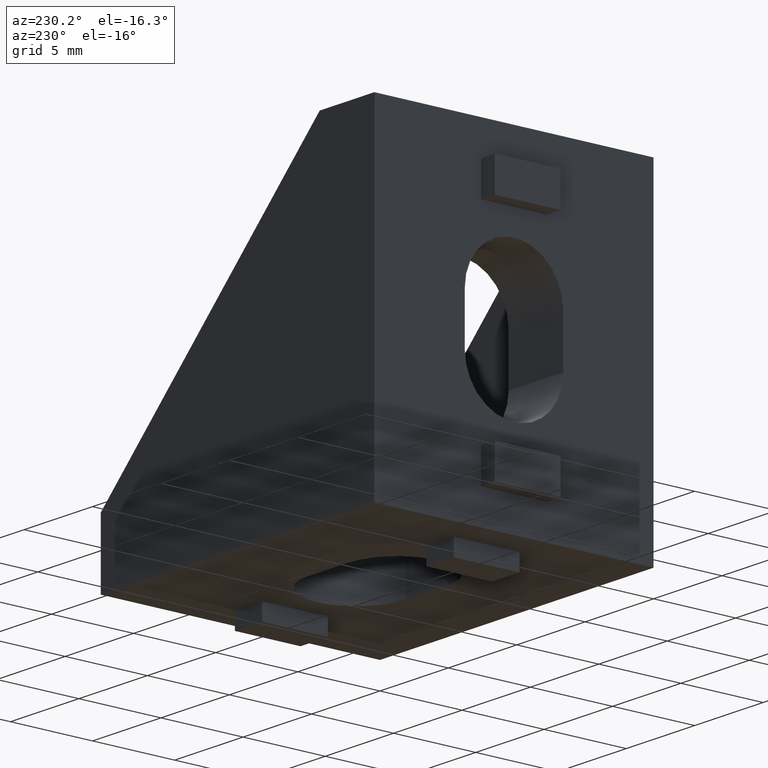
[diagram: clean part render]
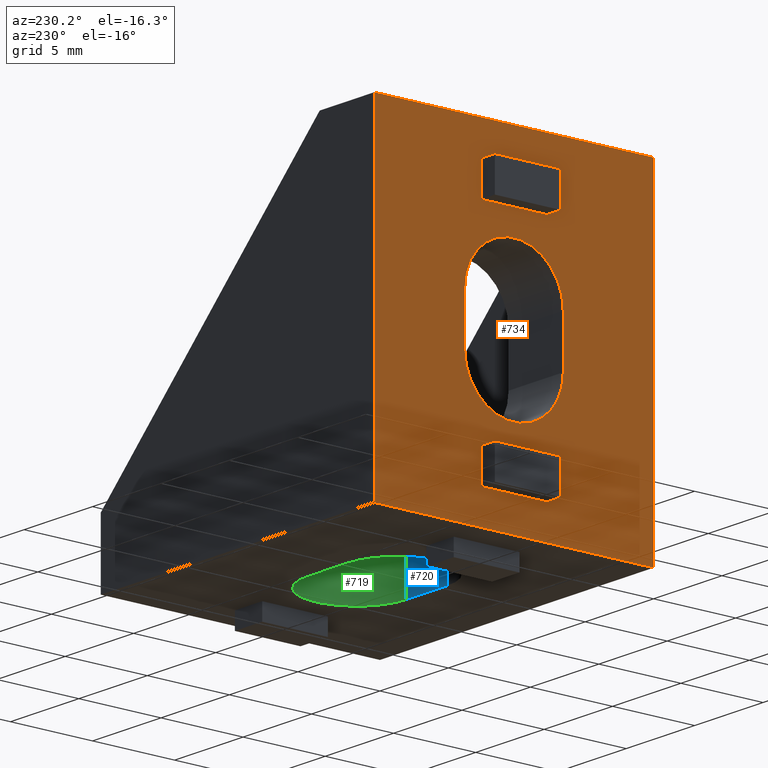
[diagram: same view with three faces highlighted in distinct colors, each labeled with its STEP entity id]
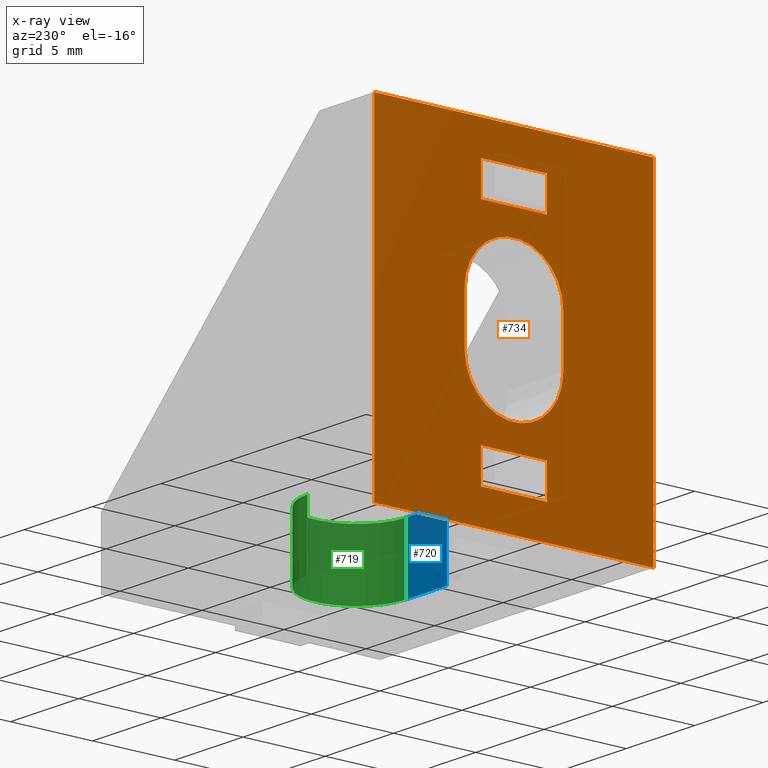
[diagram: x-ray of the same camera — body ghosted, the three highlighted faces saturated]
A machine part, auxiliary view with three faces highlighted in distinct colors.
The next image is the same camera in x-ray (body ghosted, the three faces saturated) — at least one of them is partly hidden behind the body in this view.
Their STEP definitions:

[orange] entity #734 — the highlighted planar face has unit normal (-1, 0, 0).
#20=FACE_BOUND('',#118,.T.);
#21=FACE_BOUND('',#119,.T.);
#22=FACE_BOUND('',#120,.T.);
#27=CIRCLE('',#780,3.);
#29=CIRCLE('',#784,3.);
#72=FACE_OUTER_BOUND('',#117,.T.);
#117=EDGE_LOOP('',(#635,#636,#637,#638));
#118=EDGE_LOOP('',(#639,#640,#641,#642));
#119=EDGE_LOOP('',(#643,#644,#645,#646));
#120=EDGE_LOOP('',(#647,#648,#649,#650));
#150=LINE('',#1046,#240);
#152=LINE('',#1052,#242);
#157=LINE('',#1060,#247);
#158=LINE('',#1062,#248);
#162=LINE('',#1071,#252);
#164=LINE('',#1077,#254);
#169=LINE('',#1085,#259);
#170=LINE('',#1087,#260);
#181=LINE('',#1123,#271);
#185=LINE('',#1134,#275);
#203=LINE('',#1172,#293);
#210=LINE('',#1184,#300);
#211=LINE('',#1186,#301);
#212=LINE('',#1187,#302);
#240=VECTOR('',#850,10.);
#242=VECTOR('',#854,10.);
#247=VECTOR('',#863,10.);
#248=VECTOR('',#866,10.);
#252=VECTOR('',#872,10.);
#254=VECTOR('',#876,10.);
#259=VECTOR('',#885,10.);
#260=VECTOR('',#888,10.);
#271=VECTOR('',#923,10.);
#275=VECTOR('',#935,10.);
#293=VECTOR('',#967,10.);
#300=VECTOR('',#978,10.);
#301=VECTOR('',#981,10.);
#302=VECTOR('',#982,10.);
#320=VERTEX_POINT('',#1040);
#322=VERTEX_POINT('',#1044);
#323=VERTEX_POINT('',#1048);
#325=VERTEX_POINT('',#1051);
#328=VERTEX_POINT('',#1065);
#330=VERTEX_POINT('',#1069);
#331=VERTEX_POINT('',#1073);
#333=VERTEX_POINT('',#1076);
#343=VERTEX_POINT('',#1113);
#344=VERTEX_POINT('',#1114);
#347=VERTEX_POINT('',#1122);
#349=VERTEX_POINT('',#1128);
#361=VERTEX_POINT('',#1168);
#363=VERTEX_POINT('',#1171);
#365=VERTEX_POINT('',#1180);
#366=VERTEX_POINT('',#1182);
#394=EDGE_CURVE('',#320,#322,#150,.T.);
#396=EDGE_CURVE('',#325,#323,#152,.T.);
#401=EDGE_CURVE('',#323,#320,#157,.T.);
#402=EDGE_CURVE('',#322,#325,#158,.T.);
#406=EDGE_CURVE('',#328,#330,#162,.T.);
#408=EDGE_CURVE('',#333,#331,#164,.T.);
#413=EDGE_CURVE('',#331,#328,#169,.T.);
#414=EDGE_CURVE('',#330,#333,#170,.T.);
#427=EDGE_CURVE('',#343,#344,#27,.T.);
#431=EDGE_CURVE('',#347,#343,#181,.T.);
#434=EDGE_CURVE('',#349,#347,#29,.T.);
#437=EDGE_CURVE('',#344,#349,#185,.T.);
#455=EDGE_CURVE('',#361,#363,#203,.T.);
#462=EDGE_CURVE('',#365,#366,#210,.T.);
#463=EDGE_CURVE('',#365,#361,#211,.T.);
#464=EDGE_CURVE('',#363,#366,#212,.T.);
#635=ORIENTED_EDGE('',*,*,#463,.F.);
#636=ORIENTED_EDGE('',*,*,#462,.T.);
#637=ORIENTED_EDGE('',*,*,#464,.F.);
#638=ORIENTED_EDGE('',*,*,#455,.F.);
#639=ORIENTED_EDGE('',*,*,#396,.T.);
#640=ORIENTED_EDGE('',*,*,#401,.T.);
#641=ORIENTED_EDGE('',*,*,#394,.T.);
#642=ORIENTED_EDGE('',*,*,#402,.T.);
#643=ORIENTED_EDGE('',*,*,#408,.T.);
#644=ORIENTED_EDGE('',*,*,#413,.T.);
#645=ORIENTED_EDGE('',*,*,#406,.T.);
#646=ORIENTED_EDGE('',*,*,#414,.T.);
#647=ORIENTED_EDGE('',*,*,#427,.T.);
#648=ORIENTED_EDGE('',*,*,#437,.T.);
#649=ORIENTED_EDGE('',*,*,#434,.T.);
#650=ORIENTED_EDGE('',*,*,#431,.T.);
#694=PLANE('',#796);
#734=ADVANCED_FACE('',(#72,#20,#21,#22),#694,.T.);
#780=AXIS2_PLACEMENT_3D('',#1115,#915,#916);
#784=AXIS2_PLACEMENT_3D('',#1129,#928,#929);
#796=AXIS2_PLACEMENT_3D('',#1185,#979,#980);
#850=DIRECTION('',(0.,0.,-1.));
#854=DIRECTION('',(0.,0.,1.));
#863=DIRECTION('',(0.,-1.,0.));
#866=DIRECTION('',(0.,1.,0.));
#872=DIRECTION('',(0.,0.,-1.));
#876=DIRECTION('',(0.,0.,1.));
#885=DIRECTION('',(0.,-1.,0.));
#888=DIRECTION('',(0.,1.,0.));
#915=DIRECTION('center_axis',(1.,0.,0.));
#916=DIRECTION('ref_axis',(0.,1.,0.));
#923=DIRECTION('',(0.,0.,-1.));
#928=DIRECTION('center_axis',(1.,0.,0.));
#929=DIRECTION('ref_axis',(0.,1.,0.));
#935=DIRECTION('',(0.,0.,1.));
#967=DIRECTION('',(0.,1.,0.));
#978=DIRECTION('',(0.,1.,0.));
#979=DIRECTION('center_axis',(-1.,0.,0.));
#980=DIRECTION('ref_axis',(0.,0.,1.));
#981=DIRECTION('',(0.,0.,-1.));
#982=DIRECTION('',(0.,0.,1.));
#1040=CARTESIAN_POINT('',(-2.77555756156289E-16,6.5,4.));
#1044=CARTESIAN_POINT('',(-2.77555756156289E-16,6.5,2.));
#1046=CARTESIAN_POINT('',(0.,6.5,2.));
#1048=CARTESIAN_POINT('',(2.77555756156289E-16,10.5,4.));
#1051=CARTESIAN_POINT('',(2.77555756156289E-16,10.5,2.));
#1052=CARTESIAN_POINT('',(0.,10.5,2.));
#1060=CARTESIAN_POINT('',(0.,4.25,4.));
#1062=CARTESIAN_POINT('',(0.,4.25,2.));
#1065=CARTESIAN_POINT('',(-2.77555756156289E-16,6.5,18.));
#1069=CARTESIAN_POINT('',(-2.77555756156289E-16,6.5,16.));
#1071=CARTESIAN_POINT('',(0.,6.5,9.));
#1073=CARTESIAN_POINT('',(2.77555756156289E-16,10.5,18.));
#1076=CARTESIAN_POINT('',(2.77555756156289E-16,10.5,16.));
#1077=CARTESIAN_POINT('',(0.,10.5,9.));
#1085=CARTESIAN_POINT('',(0.,4.25,18.));
#1087=CARTESIAN_POINT('',(0.,4.25,16.));
#1113=CARTESIAN_POINT('',(0.,5.5,8.5));
#1114=CARTESIAN_POINT('',(0.,11.5,8.5));
#1115=CARTESIAN_POINT('Origin',(0.,8.5,8.5));
#1122=CARTESIAN_POINT('',(0.,5.5,11.5));
#1123=CARTESIAN_POINT('',(0.,5.5,5.75));
#1128=CARTESIAN_POINT('',(0.,11.5,11.5));
#1129=CARTESIAN_POINT('Origin',(0.,8.5,11.5));
#1134=CARTESIAN_POINT('',(0.,11.5,4.25));
#1168=CARTESIAN_POINT('',(0.,0.,0.));
#1171=CARTESIAN_POINT('',(0.,17.,0.));
#1172=CARTESIAN_POINT('',(0.,0.,0.));
#1180=CARTESIAN_POINT('',(0.,0.,20.));
#1182=CARTESIAN_POINT('',(0.,17.,20.));
#1184=CARTESIAN_POINT('',(0.,0.,20.));
#1185=CARTESIAN_POINT('Origin',(0.,0.,0.));
#1186=CARTESIAN_POINT('',(0.,0.,20.));
#1187=CARTESIAN_POINT('',(0.,17.,20.));

[blue] entity #720 — the highlighted planar face has unit normal (0, -1, 0).
#58=FACE_OUTER_BOUND('',#98,.T.);
#98=EDGE_LOOP('',(#557,#558,#559,#560));
#171=LINE('',#1093,#261);
#176=LINE('',#1108,#266);
#177=LINE('',#1110,#267);
#178=LINE('',#1111,#268);
#261=VECTOR('',#893,10.);
#266=VECTOR('',#908,10.);
#267=VECTOR('',#911,10.);
#268=VECTOR('',#912,10.);
#335=VERTEX_POINT('',#1089);
#337=VERTEX_POINT('',#1092);
#341=VERTEX_POINT('',#1104);
#342=VERTEX_POINT('',#1106);
#416=EDGE_CURVE('',#337,#335,#171,.T.);
#424=EDGE_CURVE('',#342,#341,#176,.T.);
#425=EDGE_CURVE('',#341,#335,#177,.T.);
#426=EDGE_CURVE('',#337,#342,#178,.T.);
#557=ORIENTED_EDGE('',*,*,#425,.F.);
#558=ORIENTED_EDGE('',*,*,#424,.F.);
#559=ORIENTED_EDGE('',*,*,#426,.F.);
#560=ORIENTED_EDGE('',*,*,#416,.T.);
#682=PLANE('',#778);
#720=ADVANCED_FACE('',(#58),#682,.F.);
#778=AXIS2_PLACEMENT_3D('',#1109,#909,#910);
#893=DIRECTION('',(0.,0.,1.));
#908=DIRECTION('',(0.,0.,1.));
#909=DIRECTION('center_axis',(0.,-1.,0.));
#910=DIRECTION('ref_axis',(1.,0.,0.));
#911=DIRECTION('',(-1.,0.,0.));
#912=DIRECTION('',(1.,0.,0.));
#1089=CARTESIAN_POINT('',(8.5,5.5,4.));
#1092=CARTESIAN_POINT('',(8.5,5.5,0.));
#1093=CARTESIAN_POINT('',(8.5,5.5,0.));
#1104=CARTESIAN_POINT('',(11.5,5.5,4.));
#1106=CARTESIAN_POINT('',(11.5,5.5,0.));
#1108=CARTESIAN_POINT('',(11.5,5.5,0.));
#1109=CARTESIAN_POINT('Origin',(8.5,5.5,0.));
#1110=CARTESIAN_POINT('',(6.25,5.5,4.));
#1111=CARTESIAN_POINT('',(14.25,5.5,0.));

[green] entity #719 — the highlighted cylindrical surface (partial cylindrical patch) has radius 3 mm, axis along (0, 0, 1).
#25=CIRCLE('',#776,3.);
#26=CIRCLE('',#777,3.);
#32=CYLINDRICAL_SURFACE('',#775,3.);
#57=FACE_OUTER_BOUND('',#97,.T.);
#97=EDGE_LOOP('',(#553,#554,#555,#556));
#175=LINE('',#1102,#265);
#176=LINE('',#1108,#266);
#265=VECTOR('',#901,10.);
#266=VECTOR('',#908,10.);
#339=VERTEX_POINT('',#1098);
#340=VERTEX_POINT('',#1100);
#341=VERTEX_POINT('',#1104);
#342=VERTEX_POINT('',#1106);
#421=EDGE_CURVE('',#340,#339,#175,.T.);
#422=EDGE_CURVE('',#339,#341,#25,.T.);
#423=EDGE_CURVE('',#342,#340,#26,.T.);
#424=EDGE_CURVE('',#342,#341,#176,.T.);
#553=ORIENTED_EDGE('',*,*,#422,.F.);
#554=ORIENTED_EDGE('',*,*,#421,.F.);
#555=ORIENTED_EDGE('',*,*,#423,.F.);
#556=ORIENTED_EDGE('',*,*,#424,.T.);
#719=ADVANCED_FACE('',(#57),#32,.F.);
#775=AXIS2_PLACEMENT_3D('',#1103,#902,#903);
#776=AXIS2_PLACEMENT_3D('',#1105,#904,#905);
#777=AXIS2_PLACEMENT_3D('',#1107,#906,#907);
#901=DIRECTION('',(0.,0.,1.));
#902=DIRECTION('center_axis',(0.,0.,1.));
#903=DIRECTION('ref_axis',(1.,0.,0.));
#904=DIRECTION('center_axis',(0.,0.,-1.));
#905=DIRECTION('ref_axis',(1.,0.,0.));
#906=DIRECTION('center_axis',(0.,0.,1.));
#907=DIRECTION('ref_axis',(1.,0.,0.));
#908=DIRECTION('',(0.,0.,1.));
#1098=CARTESIAN_POINT('',(11.5,11.5,4.));
#1100=CARTESIAN_POINT('',(11.5,11.5,0.));
#1102=CARTESIAN_POINT('',(11.5,11.5,0.));
#1103=CARTESIAN_POINT('Origin',(11.5,8.5,0.));
#1104=CARTESIAN_POINT('',(11.5,5.5,4.));
#1105=CARTESIAN_POINT('Origin',(11.5,8.5,4.));
#1106=CARTESIAN_POINT('',(11.5,5.5,0.));
#1107=CARTESIAN_POINT('Origin',(11.5,8.5,0.));
#1108=CARTESIAN_POINT('',(11.5,5.5,0.));